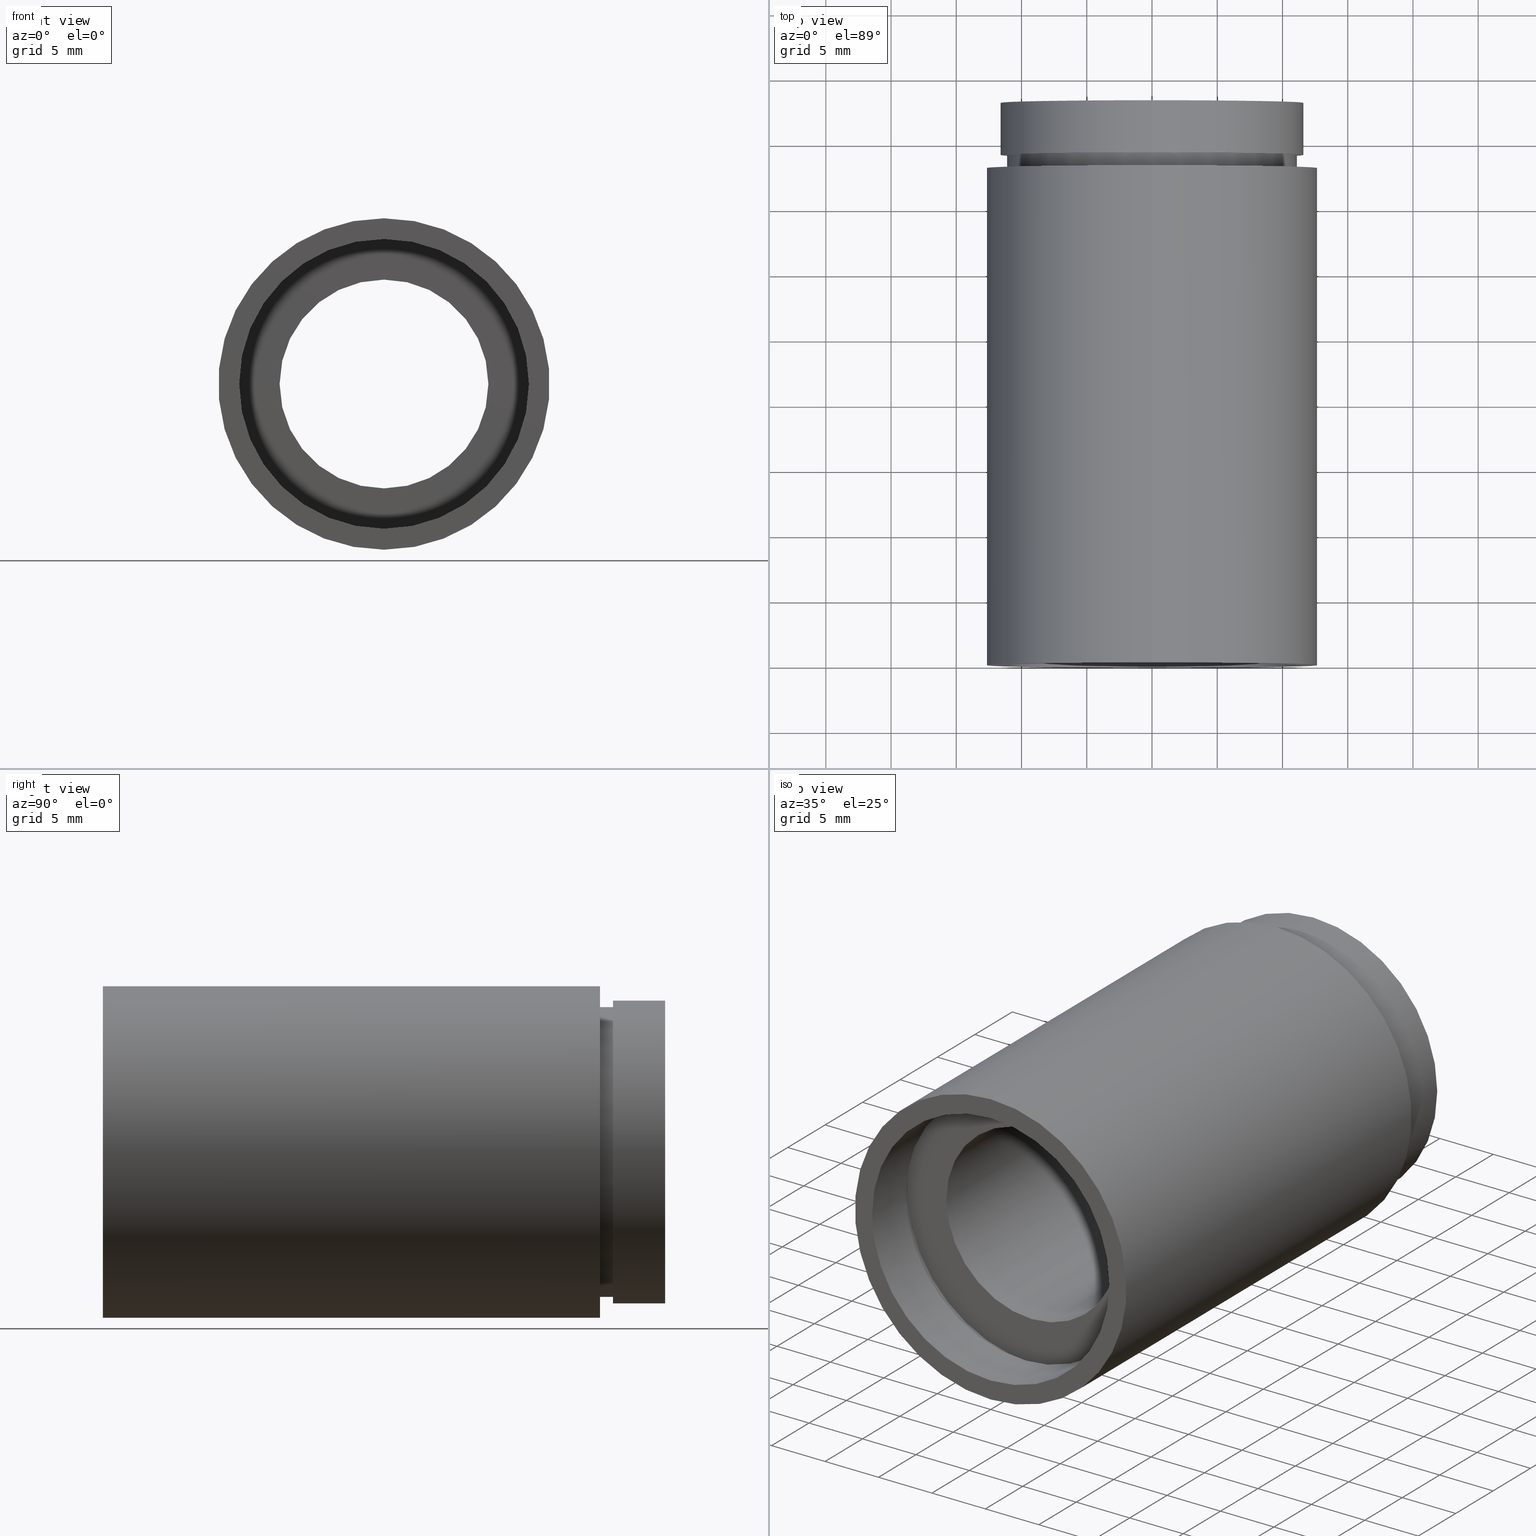
[diagram: canonical four-view strip — front | top / right | iso, engineering-drawing reading convention]
A machine part, canonical four-view strip (front | top / right | iso — engineering-drawing reading convention). The complete STEP part file that produces these views, byte-faithful:
ISO-10303-21;
HEADER;
FILE_DESCRIPTION (( 'STEP AP214' ),
    '1' );
FILE_NAME ('503068.STEP',
    '2019-09-09T07:54:37',
    ( '' ),
    ( '' ),
    'SwSTEP 2.0',
    'SolidWorks 2016',
    '' );
FILE_SCHEMA (( 'AUTOMOTIVE_DESIGN' ));
ENDSEC;

DATA;
#1 = PLANE ( 'NONE',  #345 ) ;
#2 = DIRECTION ( 'NONE',  ( -0.0000000000000000000, 1.000000000000000000, -0.0000000000000000000 ) ) ;
#3 = FACE_OUTER_BOUND ( 'NONE', #570, .T. ) ;
#4 = FILL_AREA_STYLE_COLOUR ( '', #110 ) ;
#5 = AXIS2_PLACEMENT_3D ( 'NONE', #102, #620, #55 ) ;
#6 = DIRECTION ( 'NONE',  ( 0.0000000000000000000, 0.0000000000000000000, 1.000000000000000000 ) ) ;
#7 = VECTOR ( 'NONE', #181, 1000.000000000000000 ) ;
#8 = DIRECTION ( 'NONE',  ( 0.0000000000000000000, 0.0000000000000000000, 1.000000000000000000 ) ) ;
#9 = DIRECTION ( 'NONE',  ( 0.0000000000000000000, 0.0000000000000000000, 1.000000000000000000 ) ) ;
#10 = PRESENTATION_STYLE_ASSIGNMENT (( #167 ) ) ;
#11 = ORIENTED_EDGE ( 'NONE', *, *, #369, .F. ) ;
#12 = ORIENTED_EDGE ( 'NONE', *, *, #388, .F. ) ;
#13 = CARTESIAN_POINT ( 'NONE',  ( 1.359357947053563700E-015, 161.3761669434274500, -11.10000000000001400 ) ) ;
#14 = PRESENTATION_LAYER_ASSIGNMENT (  '', '', ( #354 ) ) ;
#15 = CARTESIAN_POINT ( 'NONE',  ( 0.0000000000000000000, 38.09999999999999400, 11.10000000000001400 ) ) ;
#16 = MECHANICAL_DESIGN_GEOMETRIC_PRESENTATION_REPRESENTATION (  '', ( #420 ), #464 ) ;
#17 = CARTESIAN_POINT ( 'NONE',  ( 1.432836755002405500E-015, 5.499999999999976900, -11.70000000000001700 ) ) ;
#18 = FACE_OUTER_BOUND ( 'NONE', #138, .T. ) ;
#19 = DIRECTION ( 'NONE',  ( 0.0000000000000000000, 0.0000000000000000000, 1.000000000000000000 ) ) ;
#20 = ORIENTED_EDGE ( 'NONE', *, *, #251, .F. ) ;
#21 = EDGE_LOOP ( 'NONE', ( #472, #150, #605, #256 ) ) ;
#22 = EDGE_LOOP ( 'NONE', ( #486, #140 ) ) ;
#23 = EDGE_CURVE ( 'NONE', #299, #200, #249, .T. ) ;
#24 =( GEOMETRIC_REPRESENTATION_CONTEXT ( 3 ) GLOBAL_UNCERTAINTY_ASSIGNED_CONTEXT ( ( #166 ) ) GLOBAL_UNIT_ASSIGNED_CONTEXT ( ( #37, #142, #470 ) ) REPRESENTATION_CONTEXT ( 'NONE', 'WORKASPACE' ) );
#25 = DIRECTION ( 'NONE',  ( -0.0000000000000000000, 1.000000000000000000, 0.0000000000000000000 ) ) ;
#26 = EDGE_CURVE ( 'NONE', #224, #607, #367, .T. ) ;
#27 = CARTESIAN_POINT ( 'NONE',  ( 0.0000000000000000000, 38.09999999999999400, 0.0000000000000000000 ) ) ;
#28 = ADVANCED_FACE ( 'NONE', ( #338 ), #352, .F. ) ;
#29 = FACE_OUTER_BOUND ( 'NONE', #368, .T. ) ;
#30 = ORIENTED_EDGE ( 'NONE', *, *, #251, .T. ) ;
#31 = CARTESIAN_POINT ( 'NONE',  ( 0.0000000000000000000, 161.3761669434274500, 0.0000000000000000000 ) ) ;
#32 = ORIENTED_EDGE ( 'NONE', *, *, #104, .T. ) ;
#33 = DIRECTION ( 'NONE',  ( -0.0000000000000000000, 1.000000000000000000, -0.0000000000000000000 ) ) ;
#34 = AXIS2_PLACEMENT_3D ( 'NONE', #207, #351, #52 ) ;
#35 = PRESENTATION_STYLE_ASSIGNMENT (( #311 ) ) ;
#36 = VECTOR ( 'NONE', #552, 1000.000000000000000 ) ;
#37 =( LENGTH_UNIT ( ) NAMED_UNIT ( * ) SI_UNIT ( .MILLI., .METRE. ) );
#38 = DIRECTION ( 'NONE',  ( -0.0000000000000000000, 1.000000000000000000, -0.0000000000000000000 ) ) ;
#39 = CARTESIAN_POINT ( 'NONE',  ( 0.0000000000000000000, 0.0000000000000000000, 0.0000000000000000000 ) ) ;
#40 = DIRECTION ( 'NONE',  ( 0.0000000000000000000, 0.0000000000000000000, 1.000000000000000000 ) ) ;
#41 =( GEOMETRIC_REPRESENTATION_CONTEXT ( 3 ) GLOBAL_UNCERTAINTY_ASSIGNED_CONTEXT ( ( #271 ) ) GLOBAL_UNIT_ASSIGNED_CONTEXT ( ( #72, #319, #504 ) ) REPRESENTATION_CONTEXT ( 'NONE', 'WORKASPACE' ) );
#42 = FACE_BOUND ( 'NONE', #106, .T. ) ;
#43 = VERTEX_POINT ( 'NONE', #601 ) ;
#44 = CARTESIAN_POINT ( 'NONE',  ( 0.0000000000000000000, 39.09999999999999400, 0.0000000000000000000 ) ) ;
#45 = VERTEX_POINT ( 'NONE', #385 ) ;
#46 = CARTESIAN_POINT ( 'NONE',  ( 11.10000000000002300, -1.590039098016662300E-014, 0.0000000000000000000 ) ) ;
#47 =( GEOMETRIC_REPRESENTATION_CONTEXT ( 3 ) GLOBAL_UNCERTAINTY_ASSIGNED_CONTEXT ( ( #294 ) ) GLOBAL_UNIT_ASSIGNED_CONTEXT ( ( #215, #496, #405 ) ) REPRESENTATION_CONTEXT ( 'NONE', 'WORKASPACE' ) );
#48 = FILL_AREA_STYLE ('',( #480 ) ) ;
#49 = CARTESIAN_POINT ( 'NONE',  ( 0.0000000000000000000, 161.3761669434274500, 12.70000000000002800 ) ) ;
#50 = CIRCLE ( 'NONE', #497, 11.60000000000001400 ) ;
#51 = VERTEX_POINT ( 'NONE', #606 ) ;
#52 = DIRECTION ( 'NONE',  ( 0.0000000000000000000, 0.0000000000000000000, 1.000000000000000000 ) ) ;
#53 = EDGE_LOOP ( 'NONE', ( #305, #442, #474, #359 ) ) ;
#54 = CIRCLE ( 'NONE', #429, 11.70000000000001700 ) ;
#55 = DIRECTION ( 'NONE',  ( 0.0000000000000000000, 0.0000000000000000000, 1.000000000000000000 ) ) ;
#56 = PRESENTATION_LAYER_ASSIGNMENT (  '', '', ( #65 ) ) ;
#57 = DIRECTION ( 'NONE',  ( 0.0000000000000000000, 0.0000000000000000000, 1.000000000000000000 ) ) ;
#58 = DIRECTION ( 'NONE',  ( 1.000000000000000000, 0.0000000000000000000, 0.0000000000000000000 ) ) ;
#59 = CIRCLE ( 'NONE', #34, 11.70000000000001700 ) ;
#60 = CARTESIAN_POINT ( 'NONE',  ( 0.0000000000000000000, 161.3761669434274500, 0.0000000000000000000 ) ) ;
#61 = EDGE_CURVE ( 'NONE', #84, #149, #491, .T. ) ;
#62 = COLOUR_RGB ( '',1.000000000000000000, 1.000000000000000000, 1.000000000000000000 ) ;
#63 = DIRECTION ( 'NONE',  ( -0.0000000000000000000, 1.000000000000000000, -0.0000000000000000000 ) ) ;
#64 =( NAMED_UNIT ( * ) SI_UNIT ( $, .STERADIAN. ) SOLID_ANGLE_UNIT ( ) );
#65 = STYLED_ITEM ( 'NONE', ( #35 ), #279 ) ;
#66 = CARTESIAN_POINT ( 'NONE',  ( 0.0000000000000000000, 161.3761669434274500, 0.0000000000000000000 ) ) ;
#67 = DIRECTION ( 'NONE',  ( 0.0000000000000000000, 0.0000000000000000000, 1.000000000000000000 ) ) ;
#68 = VERTEX_POINT ( 'NONE', #202 ) ;
#69 =( GEOMETRIC_REPRESENTATION_CONTEXT ( 3 ) GLOBAL_UNCERTAINTY_ASSIGNED_CONTEXT ( ( #471 ) ) GLOBAL_UNIT_ASSIGNED_CONTEXT ( ( #217, #267, #172 ) ) REPRESENTATION_CONTEXT ( 'NONE', 'WORKASPACE' ) );
#70 = ORIENTED_EDGE ( 'NONE', *, *, #303, .T. ) ;
#71 = CYLINDRICAL_SURFACE ( 'NONE', #196, 12.70000000000002800 ) ;
#72 =( LENGTH_UNIT ( ) NAMED_UNIT ( * ) SI_UNIT ( .MILLI., .METRE. ) );
#73 = AXIS2_PLACEMENT_3D ( 'NONE', #581, #222, #162 ) ;
#74 = FILL_AREA_STYLE_COLOUR ( '', #382 ) ;
#75 = DIRECTION ( 'NONE',  ( 0.0000000000000000000, 0.0000000000000000000, 1.000000000000000000 ) ) ;
#76 = CIRCLE ( 'NONE', #560, 11.60000000000001400 ) ;
#77 = VERTEX_POINT ( 'NONE', #94 ) ;
#78 = VERTEX_POINT ( 'NONE', #241 ) ;
#79 = PRODUCT_DEFINITION ( 'δ֪', '', #389, #500 ) ;
#80 = CARTESIAN_POINT ( 'NONE',  ( 0.0000000000000000000, 161.3761669434274500, 0.0000000000000000000 ) ) ;
#81 = EDGE_CURVE ( 'NONE', #426, #45, #50, .T. ) ;
#82 = DIRECTION ( 'NONE',  ( 0.0000000000000000000, 0.0000000000000000000, 1.000000000000000000 ) ) ;
#83 = VERTEX_POINT ( 'NONE', #524 ) ;
#84 = VERTEX_POINT ( 'NONE', #301 ) ;
#85 = ORIENTED_EDGE ( 'NONE', *, *, #450, .F. ) ;
#86 = EDGE_CURVE ( 'NONE', #78, #229, #317, .T. ) ;
#87 = ADVANCED_FACE ( 'NONE', ( #425, #18 ), #469, .F. ) ;
#88 = CARTESIAN_POINT ( 'NONE',  ( 0.0000000000000000000, 38.09999999999999400, 0.0000000000000000000 ) ) ;
#89 = AXIS2_PLACEMENT_3D ( 'NONE', #60, #2, #8 ) ;
#90 = ORIENTED_EDGE ( 'NONE', *, *, #505, .F. ) ;
#91 = ORIENTED_EDGE ( 'NONE', *, *, #537, .F. ) ;
#92 = UNCERTAINTY_MEASURE_WITH_UNIT (LENGTH_MEASURE( 1.000000000000000100E-005 ), #561, 'distance_accuracy_value', 'NONE');
#93 = CIRCLE ( 'NONE', #270, 11.10000000000001400 ) ;
#94 = CARTESIAN_POINT ( 'NONE',  ( 0.0000000000000000000, -2.775557561562891400E-014, 12.70000000000001900 ) ) ;
#95 =( LENGTH_UNIT ( ) NAMED_UNIT ( * ) SI_UNIT ( .MILLI., .METRE. ) );
#96 = ORIENTED_EDGE ( 'NONE', *, *, #104, .F. ) ;
#97 = CARTESIAN_POINT ( 'NONE',  ( 0.0000000000000000000, 161.3761669434274500, 8.000000000000019500 ) ) ;
#98 = ORIENTED_EDGE ( 'NONE', *, *, #423, .T. ) ;
#99 = DIRECTION ( 'NONE',  ( 0.0000000000000000000, 0.0000000000000000000, 1.000000000000000000 ) ) ;
#100 = STYLED_ITEM ( 'NONE', ( #350 ), #461 ) ;
#101 = CYLINDRICAL_SURFACE ( 'NONE', #89, 8.000000000000019500 ) ;
#102 = CARTESIAN_POINT ( 'NONE',  ( 0.0000000000000000000, 161.3761669434274500, 0.0000000000000000000 ) ) ;
#103 = CARTESIAN_POINT ( 'NONE',  ( 0.0000000000000000000, 38.09999999999999400, 0.0000000000000000000 ) ) ;
#104 = EDGE_CURVE ( 'NONE', #607, #224, #105, .T. ) ;
#105 = CIRCLE ( 'NONE', #551, 11.60000000000001400 ) ;
#106 = EDGE_LOOP ( 'NONE', ( #346, #510 ) ) ;
#107 = APPLICATION_PROTOCOL_DEFINITION ( 'draft international standard', 'automotive_design', 1998, #261 ) ;
#108 = CIRCLE ( 'NONE', #484, 11.10000000000001400 ) ;
#109 = UNCERTAINTY_MEASURE_WITH_UNIT (LENGTH_MEASURE( 1.000000000000000100E-005 ), #522, 'distance_accuracy_value', 'NONE');
#110 = COLOUR_RGB ( '',1.000000000000000000, 1.000000000000000000, 1.000000000000000000 ) ;
#111 = DIRECTION ( 'NONE',  ( 0.0000000000000000000, 0.0000000000000000000, 1.000000000000000000 ) ) ;
#112 = EDGE_CURVE ( 'NONE', #84, #68, #165, .T. ) ;
#113 = FILL_AREA_STYLE ('',( #567 ) ) ;
#114 = ORIENTED_EDGE ( 'NONE', *, *, #378, .T. ) ;
#115 = EDGE_CURVE ( 'NONE', #45, #426, #76, .T. ) ;
#116 = CYLINDRICAL_SURFACE ( 'NONE', #618, 11.70000000000001700 ) ;
#117 =( LENGTH_UNIT ( ) NAMED_UNIT ( * ) SI_UNIT ( .MILLI., .METRE. ) );
#118 = VERTEX_POINT ( 'NONE', #296 ) ;
#119 = AXIS2_PLACEMENT_3D ( 'NONE', #545, #269, #75 ) ;
#120 = CARTESIAN_POINT ( 'NONE',  ( 1.420590287010931300E-015, 39.09999999999999400, -11.60000000000001400 ) ) ;
#121 = AXIS2_PLACEMENT_3D ( 'NONE', #66, #268, #57 ) ;
#122 = CARTESIAN_POINT ( 'NONE',  ( 0.0000000000000000000, 5.499999999999976900, 0.0000000000000000000 ) ) ;
#123 = CARTESIAN_POINT ( 'NONE',  ( 0.0000000000000000000, 161.3761669434274500, 11.70000000000001700 ) ) ;
#124 = FACE_BOUND ( 'NONE', #281, .T. ) ;
#125 = CARTESIAN_POINT ( 'NONE',  ( 0.0000000000000000000, 43.09999999999998700, 0.0000000000000000000 ) ) ;
#126 = ORIENTED_EDGE ( 'NONE', *, *, #537, .T. ) ;
#127 = ADVANCED_FACE ( 'NONE', ( #29, #42 ), #143, .F. ) ;
#128 = ORIENTED_EDGE ( 'NONE', *, *, #455, .F. ) ;
#129 = PRESENTATION_LAYER_ASSIGNMENT (  '', '', ( #183 ) ) ;
#130 = VERTEX_POINT ( 'NONE', #610 ) ;
#131 = CARTESIAN_POINT ( 'NONE',  ( 11.70000000000001700, 5.499999999999984000, 0.0000000000000000000 ) ) ;
#132 = UNCERTAINTY_MEASURE_WITH_UNIT (LENGTH_MEASURE( 1.000000000000000100E-005 ), #117, 'distance_accuracy_value', 'NONE');
#133 = ADVANCED_FACE ( 'NONE', ( #3 ), #116, .F. ) ;
#134 = AXIS2_PLACEMENT_3D ( 'NONE', #276, #230, #9 ) ;
#135 = DIRECTION ( 'NONE',  ( -0.0000000000000000000, 1.000000000000000000, -0.0000000000000000000 ) ) ;
#136 = ADVANCED_FACE ( 'NONE', ( #419 ), #506, .T. ) ;
#137 = DIRECTION ( 'NONE',  ( 0.0000000000000000000, 0.0000000000000000000, 1.000000000000000000 ) ) ;
#138 = EDGE_LOOP ( 'NONE', ( #348, #223 ) ) ;
#139 = CARTESIAN_POINT ( 'NONE',  ( 0.0000000000000000000, 39.09999999999999400, 0.0000000000000000000 ) ) ;
#140 = ORIENTED_EDGE ( 'NONE', *, *, #418, .T. ) ;
#141 = EDGE_CURVE ( 'NONE', #45, #224, #604, .T. ) ;
#142 =( NAMED_UNIT ( * ) PLANE_ANGLE_UNIT ( ) SI_UNIT ( $, .RADIAN. ) );
#143 = PLANE ( 'NONE',  #177 ) ;
#144 = SURFACE_STYLE_FILL_AREA ( #589 ) ;
#145 = DIRECTION ( 'NONE',  ( -0.0000000000000000000, 1.000000000000000000, -0.0000000000000000000 ) ) ;
#146 = PRESENTATION_LAYER_ASSIGNMENT (  '', '', ( #100 ) ) ;
#147 = CARTESIAN_POINT ( 'NONE',  ( 0.0000000000000000000, -2.775557561562891400E-014, 0.0000000000000000000 ) ) ;
#148 = CYLINDRICAL_SURFACE ( 'NONE', #210, 11.60000000000001400 ) ;
#149 = VERTEX_POINT ( 'NONE', #575 ) ;
#150 = ORIENTED_EDGE ( 'NONE', *, *, #23, .T. ) ;
#151 = DIRECTION ( 'NONE',  ( 0.0000000000000000000, 0.0000000000000000000, 1.000000000000000000 ) ) ;
#152 = ORIENTED_EDGE ( 'NONE', *, *, #201, .T. ) ;
#153 = AXIS2_PLACEMENT_3D ( 'NONE', #578, #250, #151 ) ;
#154 = LINE ( 'NONE', #123, #562 ) ;
#155 = CARTESIAN_POINT ( 'NONE',  ( 0.0000000000000000000, 43.09999999999998700, 11.60000000000001400 ) ) ;
#156 = VECTOR ( 'NONE', #441, 1000.000000000000000 ) ;
#157 = ORIENTED_EDGE ( 'NONE', *, *, #309, .F. ) ;
#158 = ORIENTED_EDGE ( 'NONE', *, *, #388, .T. ) ;
#159 = SURFACE_SIDE_STYLE ('',( #527 ) ) ;
#160 = AXIS2_PLACEMENT_3D ( 'NONE', #80, #598, #465 ) ;
#161 = PRODUCT ( '503068', '503068', '', ( #357 ) ) ;
#162 = DIRECTION ( 'NONE',  ( 0.0000000000000000000, 0.0000000000000000000, 1.000000000000000000 ) ) ;
#163 = EDGE_CURVE ( 'NONE', #51, #416, #502, .T. ) ;
#164 = APPLICATION_CONTEXT ( 'automotive_design' ) ;
#165 = LINE ( 'NONE', #431, #568 ) ;
#166 = UNCERTAINTY_MEASURE_WITH_UNIT (LENGTH_MEASURE( 1.000000000000000100E-005 ), #37, 'distance_accuracy_value', 'NONE');
#167 = SURFACE_STYLE_USAGE ( .BOTH. , #624 ) ;
#168 = LINE ( 'NONE', #331, #398 ) ;
#169 = CARTESIAN_POINT ( 'NONE',  ( 12.70000000000003700, 38.09999999999998700, 0.0000000000000000000 ) ) ;
#170 = CIRCLE ( 'NONE', #529, 8.000000000000019500 ) ;
#171 = AXIS2_PLACEMENT_3D ( 'NONE', #176, #179, #67 ) ;
#172 =( NAMED_UNIT ( * ) SI_UNIT ( $, .STERADIAN. ) SOLID_ANGLE_UNIT ( ) );
#173 = CARTESIAN_POINT ( 'NONE',  ( 1.359357947053564500E-015, 161.3761669434274500, -11.10000000000002100 ) ) ;
#174 = AXIS2_PLACEMENT_3D ( 'NONE', #122, #548, #363 ) ;
#175 = ORIENTED_EDGE ( 'NONE', *, *, #234, .F. ) ;
#176 = CARTESIAN_POINT ( 'NONE',  ( 0.0000000000000000000, -2.775557561562891400E-014, 0.0000000000000000000 ) ) ;
#177 = AXIS2_PLACEMENT_3D ( 'NONE', #46, #399, #573 ) ;
#178 = CARTESIAN_POINT ( 'NONE',  ( 0.0000000000000000000, 43.09999999999998700, 8.000000000000019500 ) ) ;
#179 = DIRECTION ( 'NONE',  ( -0.0000000000000000000, 1.000000000000000000, -0.0000000000000000000 ) ) ;
#180 = COLOUR_RGB ( '',1.000000000000000000, 1.000000000000000000, 1.000000000000000000 ) ;
#181 = DIRECTION ( 'NONE',  ( -0.0000000000000000000, 1.000000000000000000, -0.0000000000000000000 ) ) ;
#182 = EDGE_LOOP ( 'NONE', ( #221, #387 ) ) ;
#183 = STYLED_ITEM ( 'NONE', ( #616 ), #384 ) ;
#184 = ORIENTED_EDGE ( 'NONE', *, *, #406, .T. ) ;
#185 = CARTESIAN_POINT ( 'NONE',  ( 11.10000000000001400, 39.09999999999999400, 0.0000000000000000000 ) ) ;
#186 = LINE ( 'NONE', #591, #458 ) ;
#187 = ADVANCED_FACE ( 'NONE', ( #485 ), #148, .T. ) ;
#188 = EDGE_CURVE ( 'NONE', #130, #83, #415, .T. ) ;
#189 = DIRECTION ( 'NONE',  ( 0.0000000000000000000, 0.0000000000000000000, 1.000000000000000000 ) ) ;
#190 = ORIENTED_EDGE ( 'NONE', *, *, #525, .T. ) ;
#191 = DIRECTION ( 'NONE',  ( -0.0000000000000000000, 1.000000000000000000, -0.0000000000000000000 ) ) ;
#192 = CYLINDRICAL_SURFACE ( 'NONE', #134, 11.10000000000002100 ) ;
#193 = CIRCLE ( 'NONE', #174, 11.70000000000001700 ) ;
#194 = DIRECTION ( 'NONE',  ( 0.0000000000000000000, -0.0000000000000000000, -1.000000000000000000 ) ) ;
#195 = UNCERTAINTY_MEASURE_WITH_UNIT (LENGTH_MEASURE( 1.000000000000000100E-005 ), #95, 'distance_accuracy_value', 'NONE');
#196 = AXIS2_PLACEMENT_3D ( 'NONE', #424, #240, #468 ) ;
#197 = DIRECTION ( 'NONE',  ( -0.0000000000000000000, 1.000000000000000000, -0.0000000000000000000 ) ) ;
#198 = DIRECTION ( 'NONE',  ( -0.0000000000000000000, 1.000000000000000000, -0.0000000000000000000 ) ) ;
#199 = SURFACE_STYLE_FILL_AREA ( #586 ) ;
#200 = VERTEX_POINT ( 'NONE', #209 ) ;
#201 = EDGE_CURVE ( 'NONE', #77, #130, #452, .T. ) ;
#202 = CARTESIAN_POINT ( 'NONE',  ( 0.0000000000000000000, 4.499999999999976000, 11.10000000000001900 ) ) ;
#203 = FACE_OUTER_BOUND ( 'NONE', #53, .T. ) ;
#204 = DIRECTION ( 'NONE',  ( -0.0000000000000000000, 1.000000000000000000, -0.0000000000000000000 ) ) ;
#205 = MECHANICAL_DESIGN_GEOMETRIC_PRESENTATION_REPRESENTATION (  '', ( #100 ), #208 ) ;
#206 = FACE_OUTER_BOUND ( 'NONE', #536, .T. ) ;
#207 = CARTESIAN_POINT ( 'NONE',  ( 0.0000000000000000000, 4.499999999999976000, 0.0000000000000000000 ) ) ;
#208 =( GEOMETRIC_REPRESENTATION_CONTEXT ( 3 ) GLOBAL_UNCERTAINTY_ASSIGNED_CONTEXT ( ( #132 ) ) GLOBAL_UNIT_ASSIGNED_CONTEXT ( ( #117, #321, #324 ) ) REPRESENTATION_CONTEXT ( 'NONE', 'WORKASPACE' ) );
#209 = CARTESIAN_POINT ( 'NONE',  ( 9.797174393178849300E-016, 43.09999999999998700, -8.000000000000019500 ) ) ;
#210 = AXIS2_PLACEMENT_3D ( 'NONE', #530, #255, #347 ) ;
#211 = LINE ( 'NONE', #483, #323 ) ;
#212 = DIRECTION ( 'NONE',  ( 0.0000000000000000000, -1.000000000000000000, 0.0000000000000000000 ) ) ;
#213 = EDGE_LOOP ( 'NONE', ( #456, #98, #362, #91 ) ) ;
#214 = ORIENTED_EDGE ( 'NONE', *, *, #284, .T. ) ;
#215 =( LENGTH_UNIT ( ) NAMED_UNIT ( * ) SI_UNIT ( .MILLI., .METRE. ) );
#216 = MECHANICAL_DESIGN_GEOMETRIC_PRESENTATION_REPRESENTATION (  '', ( #65 ), #69 ) ;
#217 =( LENGTH_UNIT ( ) NAMED_UNIT ( * ) SI_UNIT ( .MILLI., .METRE. ) );
#218 = CARTESIAN_POINT ( 'NONE',  ( 0.0000000000000000000, 161.3761669434274500, 0.0000000000000000000 ) ) ;
#219 = AXIS2_PLACEMENT_3D ( 'NONE', #585, #316, #6 ) ;
#220 = SURFACE_SIDE_STYLE ('',( #266 ) ) ;
#221 = ORIENTED_EDGE ( 'NONE', *, *, #188, .T. ) ;
#222 = DIRECTION ( 'NONE',  ( -0.0000000000000000000, 1.000000000000000000, -0.0000000000000000000 ) ) ;
#223 = ORIENTED_EDGE ( 'NONE', *, *, #234, .T. ) ;
#224 = VERTEX_POINT ( 'NONE', #155 ) ;
#225 = SURFACE_STYLE_USAGE ( .BOTH. , #590 ) ;
#226 = CARTESIAN_POINT ( 'NONE',  ( 0.0000000000000000000, 43.09999999999998700, 0.0000000000000000000 ) ) ;
#227 = AXIS2_PLACEMENT_3D ( 'NONE', #185, #379, #19 ) ;
#228 = EDGE_LOOP ( 'NONE', ( #396, #32 ) ) ;
#229 = VERTEX_POINT ( 'NONE', #617 ) ;
#230 = DIRECTION ( 'NONE',  ( -0.0000000000000000000, 1.000000000000000000, -0.0000000000000000000 ) ) ;
#231 = PRESENTATION_LAYER_ASSIGNMENT (  '', '', ( #420 ) ) ;
#232 = DIRECTION ( 'NONE',  ( -0.0000000000000000000, 1.000000000000000000, -0.0000000000000000000 ) ) ;
#233 = DIRECTION ( 'NONE',  ( -0.0000000000000000000, 1.000000000000000000, -0.0000000000000000000 ) ) ;
#234 = EDGE_CURVE ( 'NONE', #229, #78, #59, .T. ) ;
#235 = ORIENTED_EDGE ( 'NONE', *, *, #501, .T. ) ;
#236 = ORIENTED_EDGE ( 'NONE', *, *, #61, .F. ) ;
#237 = SURFACE_STYLE_USAGE ( .BOTH. , #514 ) ;
#238 = VECTOR ( 'NONE', #454, 1000.000000000000000 ) ;
#239 = MECHANICAL_DESIGN_GEOMETRIC_PRESENTATION_REPRESENTATION (  '', ( #183 ), #41 ) ;
#240 = DIRECTION ( 'NONE',  ( -0.0000000000000000000, 1.000000000000000000, -0.0000000000000000000 ) ) ;
#241 = CARTESIAN_POINT ( 'NONE',  ( 0.0000000000000000000, 4.499999999999976000, 11.70000000000001700 ) ) ;
#242 = AXIS2_PLACEMENT_3D ( 'NONE', #544, #63, #263 ) ;
#243 = ORIENTED_EDGE ( 'NONE', *, *, #455, .T. ) ;
#244 = CARTESIAN_POINT ( 'NONE',  ( 1.420590287010931300E-015, 43.09999999999998700, -11.60000000000001400 ) ) ;
#245 = ORIENTED_EDGE ( 'NONE', *, *, #593, .F. ) ;
#246 =( NAMED_UNIT ( * ) PLANE_ANGLE_UNIT ( ) SI_UNIT ( $, .RADIAN. ) );
#247 = DIRECTION ( 'NONE',  ( 0.0000000000000000000, 0.0000000000000000000, 1.000000000000000000 ) ) ;
#248 = CYLINDRICAL_SURFACE ( 'NONE', #392, 11.10000000000002100 ) ;
#249 = LINE ( 'NONE', #516, #325 ) ;
#250 = DIRECTION ( 'NONE',  ( -0.0000000000000000000, 1.000000000000000000, -0.0000000000000000000 ) ) ;
#251 = EDGE_CURVE ( 'NONE', #426, #607, #211, .T. ) ;
#252 = CLOSED_SHELL ( 'NONE', ( #461, #133, #381, #592, #330, #599, #127, #136, #374, #518, #559, #187, #372, #28, #555, #292, #87, #335 ) ) ;
#253 = PRESENTATION_STYLE_ASSIGNMENT (( #237 ) ) ;
#254 = SURFACE_STYLE_FILL_AREA ( #499 ) ;
#255 = DIRECTION ( 'NONE',  ( -0.0000000000000000000, 1.000000000000000000, -0.0000000000000000000 ) ) ;
#256 = ORIENTED_EDGE ( 'NONE', *, *, #163, .F. ) ;
#257 =( NAMED_UNIT ( * ) SI_UNIT ( $, .STERADIAN. ) SOLID_ANGLE_UNIT ( ) );
#258 = SURFACE_SIDE_STYLE ('',( #393 ) ) ;
#259 = CARTESIAN_POINT ( 'NONE',  ( 11.60000000000001400, 43.09999999999998700, 0.0000000000000000000 ) ) ;
#260 = AXIS2_PLACEMENT_3D ( 'NONE', #147, #191, #293 ) ;
#261 = APPLICATION_CONTEXT ( 'automotive_design' ) ;
#262 = FACE_BOUND ( 'NONE', #376, .T. ) ;
#263 = DIRECTION ( 'NONE',  ( 0.0000000000000000000, 0.0000000000000000000, 1.000000000000000000 ) ) ;
#264 = ORIENTED_EDGE ( 'NONE', *, *, #141, .F. ) ;
#265 = DIRECTION ( 'NONE',  ( -0.0000000000000000000, 1.000000000000000000, -0.0000000000000000000 ) ) ;
#266 = SURFACE_STYLE_FILL_AREA ( #113 ) ;
#267 =( NAMED_UNIT ( * ) PLANE_ANGLE_UNIT ( ) SI_UNIT ( $, .RADIAN. ) );
#268 = DIRECTION ( 'NONE',  ( -0.0000000000000000000, 1.000000000000000000, -0.0000000000000000000 ) ) ;
#269 = DIRECTION ( 'NONE',  ( -0.0000000000000000000, 1.000000000000000000, -0.0000000000000000000 ) ) ;
#270 = AXIS2_PLACEMENT_3D ( 'NONE', #88, #460, #137 ) ;
#271 = UNCERTAINTY_MEASURE_WITH_UNIT (LENGTH_MEASURE( 1.000000000000000100E-005 ), #72, 'distance_accuracy_value', 'NONE');
#272 = CIRCLE ( 'NONE', #73, 12.70000000000003700 ) ;
#273 = CARTESIAN_POINT ( 'NONE',  ( 1.432836755002405500E-015, 161.3761669434274500, -11.70000000000001700 ) ) ;
#274 = VERTEX_POINT ( 'NONE', #308 ) ;
#275 = EDGE_LOOP ( 'NONE', ( #580, #547 ) ) ;
#276 = CARTESIAN_POINT ( 'NONE',  ( 0.0000000000000000000, 161.3761669434274500, 0.0000000000000000000 ) ) ;
#277 = DIRECTION ( 'NONE',  ( 0.0000000000000000000, 0.0000000000000000000, 1.000000000000000000 ) ) ;
#278 = DIRECTION ( 'NONE',  ( 0.0000000000000000000, 0.0000000000000000000, 1.000000000000000000 ) ) ;
#279 = ADVANCED_BREP_SHAPE_REPRESENTATION ( '503068', ( #384, #322 ), #24 ) ;
#280 =( GEOMETRIC_REPRESENTATION_CONTEXT ( 3 ) GLOBAL_UNCERTAINTY_ASSIGNED_CONTEXT ( ( #603 ) ) GLOBAL_UNIT_ASSIGNED_CONTEXT ( ( #540, #358, #64 ) ) REPRESENTATION_CONTEXT ( 'NONE', 'WORKASPACE' ) );
#281 = EDGE_LOOP ( 'NONE', ( #403, #340 ) ) ;
#282 = VERTEX_POINT ( 'NONE', #304 ) ;
#283 = EDGE_LOOP ( 'NONE', ( #12, #428 ) ) ;
#284 = EDGE_CURVE ( 'NONE', #377, #274, #534, .T. ) ;
#285 = LINE ( 'NONE', #273, #36 ) ;
#286 = DIRECTION ( 'NONE',  ( -0.0000000000000000000, 1.000000000000000000, -0.0000000000000000000 ) ) ;
#287 =( NAMED_UNIT ( * ) SI_UNIT ( $, .STERADIAN. ) SOLID_ANGLE_UNIT ( ) );
#288 = DIRECTION ( 'NONE',  ( 0.0000000000000000000, 0.0000000000000000000, 1.000000000000000000 ) ) ;
#289 = CIRCLE ( 'NONE', #608, 11.10000000000001400 ) ;
#290 = FILL_AREA_STYLE_COLOUR ( '', #62 ) ;
#291 = ORIENTED_EDGE ( 'NONE', *, *, #588, .F. ) ;
#292 = ADVANCED_FACE ( 'NONE', ( #206 ), #401, .F. ) ;
#293 = DIRECTION ( 'NONE',  ( 0.0000000000000000000, 0.0000000000000000000, 1.000000000000000000 ) ) ;
#294 = UNCERTAINTY_MEASURE_WITH_UNIT (LENGTH_MEASURE( 1.000000000000000100E-005 ), #215, 'distance_accuracy_value', 'NONE');
#295 = DIRECTION ( 'NONE',  ( 0.0000000000000000000, -1.000000000000000000, 0.0000000000000000000 ) ) ;
#296 = CARTESIAN_POINT ( 'NONE',  ( 1.555301434917141200E-015, -2.775557561562891400E-014, -12.70000000000001900 ) ) ;
#297 = VECTOR ( 'NONE', #343, 1000.000000000000000 ) ;
#298 = AXIS2_PLACEMENT_3D ( 'NONE', #383, #609, #40 ) ;
#299 = VERTEX_POINT ( 'NONE', #360 ) ;
#300 = ORIENTED_EDGE ( 'NONE', *, *, #112, .F. ) ;
#301 = CARTESIAN_POINT ( 'NONE',  ( 0.0000000000000000000, -2.775557561562891400E-014, 11.10000000000002300 ) ) ;
#302 = DIRECTION ( 'NONE',  ( -0.0000000000000000000, 1.000000000000000000, -0.0000000000000000000 ) ) ;
#303 = EDGE_CURVE ( 'NONE', #274, #377, #289, .T. ) ;
#304 = CARTESIAN_POINT ( 'NONE',  ( 1.359357947053563700E-015, 38.09999999999999400, -11.10000000000001400 ) ) ;
#305 = ORIENTED_EDGE ( 'NONE', *, *, #369, .T. ) ;
#306 = MECHANICAL_DESIGN_GEOMETRIC_PRESENTATION_REPRESENTATION (  '', ( #354 ), #280 ) ;
#307 = EDGE_LOOP ( 'NONE', ( #595, #236, #519, #243 ) ) ;
#308 = CARTESIAN_POINT ( 'NONE',  ( 0.0000000000000000000, 39.09999999999999400, 11.10000000000001400 ) ) ;
#309 = EDGE_CURVE ( 'NONE', #83, #130, #272, .T. ) ;
#310 = CARTESIAN_POINT ( 'NONE',  ( 0.0000000000000000000, 39.09999999999999400, 0.0000000000000000000 ) ) ;
#311 = SURFACE_STYLE_USAGE ( .BOTH. , #220 ) ;
#312 = ORIENTED_EDGE ( 'NONE', *, *, #163, .T. ) ;
#313 = PRESENTATION_LAYER_ASSIGNMENT (  '', '', ( #520 ) ) ;
#314 = FACE_OUTER_BOUND ( 'NONE', #487, .T. ) ;
#315 = LINE ( 'NONE', #173, #238 ) ;
#316 = DIRECTION ( 'NONE',  ( -0.0000000000000000000, 1.000000000000000000, -0.0000000000000000000 ) ) ;
#317 = CIRCLE ( 'NONE', #298, 11.70000000000001700 ) ;
#318 = EDGE_LOOP ( 'NONE', ( #332, #291, #312, #353 ) ) ;
#319 =( NAMED_UNIT ( * ) PLANE_ANGLE_UNIT ( ) SI_UNIT ( $, .RADIAN. ) );
#320 = COLOUR_RGB ( '',1.000000000000000000, 1.000000000000000000, 1.000000000000000000 ) ;
#321 =( NAMED_UNIT ( * ) PLANE_ANGLE_UNIT ( ) SI_UNIT ( $, .RADIAN. ) );
#322 = AXIS2_PLACEMENT_3D ( 'NONE', #39, #446, #58 ) ;
#323 = VECTOR ( 'NONE', #204, 1000.000000000000000 ) ;
#324 =( NAMED_UNIT ( * ) SI_UNIT ( $, .STERADIAN. ) SOLID_ANGLE_UNIT ( ) );
#325 = VECTOR ( 'NONE', #198, 1000.000000000000000 ) ;
#326 = AXIS2_PLACEMENT_3D ( 'NONE', #103, #302, #574 ) ;
#327 = DIRECTION ( 'NONE',  ( 0.0000000000000000000, 0.0000000000000000000, 1.000000000000000000 ) ) ;
#328 = DIRECTION ( 'NONE',  ( -0.0000000000000000000, 1.000000000000000000, -0.0000000000000000000 ) ) ;
#329 = DIRECTION ( 'NONE',  ( -0.0000000000000000000, 1.000000000000000000, -0.0000000000000000000 ) ) ;
#330 = ADVANCED_FACE ( 'NONE', ( #517 ), #619, .T. ) ;
#331 = CARTESIAN_POINT ( 'NONE',  ( 0.0000000000000000000, 161.3761669434274500, 11.10000000000001400 ) ) ;
#332 = ORIENTED_EDGE ( 'NONE', *, *, #23, .F. ) ;
#333 = FACE_OUTER_BOUND ( 'NONE', #275, .T. ) ;
#334 = AXIS2_PLACEMENT_3D ( 'NONE', #226, #232, #278 ) ;
#335 = ADVANCED_FACE ( 'NONE', ( #386 ), #248, .F. ) ;
#336 = DIRECTION ( 'NONE',  ( 0.0000000000000000000, 0.0000000000000000000, 1.000000000000000000 ) ) ;
#337 = STYLED_ITEM ( 'NONE', ( #10 ), #335 ) ;
#338 = FACE_OUTER_BOUND ( 'NONE', #318, .T. ) ;
#339 = FILL_AREA_STYLE ('',( #290 ) ) ;
#340 = ORIENTED_EDGE ( 'NONE', *, *, #501, .F. ) ;
#341 =( NAMED_UNIT ( * ) SI_UNIT ( $, .STERADIAN. ) SOLID_ANGLE_UNIT ( ) );
#342 = FACE_OUTER_BOUND ( 'NONE', #283, .T. ) ;
#343 = DIRECTION ( 'NONE',  ( -0.0000000000000000000, 1.000000000000000000, -0.0000000000000000000 ) ) ;
#344 = FACE_OUTER_BOUND ( 'NONE', #228, .T. ) ;
#345 = AXIS2_PLACEMENT_3D ( 'NONE', #259, #451, #444 ) ;
#346 = ORIENTED_EDGE ( 'NONE', *, *, #61, .T. ) ;
#347 = DIRECTION ( 'NONE',  ( 0.0000000000000000000, 0.0000000000000000000, 1.000000000000000000 ) ) ;
#348 = ORIENTED_EDGE ( 'NONE', *, *, #86, .T. ) ;
#349 = FACE_BOUND ( 'NONE', #22, .T. ) ;
#350 = PRESENTATION_STYLE_ASSIGNMENT (( #225 ) ) ;
#351 = DIRECTION ( 'NONE',  ( -0.0000000000000000000, 1.000000000000000000, -0.0000000000000000000 ) ) ;
#352 = CYLINDRICAL_SURFACE ( 'NONE', #621, 8.000000000000019500 ) ;
#353 = ORIENTED_EDGE ( 'NONE', *, *, #507, .T. ) ;
#354 = STYLED_ITEM ( 'NONE', ( #584 ), #381 ) ;
#355 = DIRECTION ( 'NONE',  ( -0.0000000000000000000, 1.000000000000000000, -0.0000000000000000000 ) ) ;
#356 = PRESENTATION_LAYER_ASSIGNMENT (  '', '', ( #337 ) ) ;
#357 = PRODUCT_CONTEXT ( 'NONE', #261, 'mechanical' ) ;
#358 =( NAMED_UNIT ( * ) PLANE_ANGLE_UNIT ( ) SI_UNIT ( $, .RADIAN. ) );
#359 = ORIENTED_EDGE ( 'NONE', *, *, #201, .F. ) ;
#360 = CARTESIAN_POINT ( 'NONE',  ( 9.797174393178849300E-016, 5.499999999999976900, -8.000000000000019500 ) ) ;
#361 = ORIENTED_EDGE ( 'NONE', *, *, #115, .T. ) ;
#362 = ORIENTED_EDGE ( 'NONE', *, *, #303, .F. ) ;
#363 = DIRECTION ( 'NONE',  ( 0.0000000000000000000, 0.0000000000000000000, 1.000000000000000000 ) ) ;
#364 = FILL_AREA_STYLE_COLOUR ( '', #404 ) ;
#365 = AXIS2_PLACEMENT_3D ( 'NONE', #169, #212, #539 ) ;
#366 = CARTESIAN_POINT ( 'NONE',  ( 0.0000000000000000000, 5.499999999999976900, 0.0000000000000000000 ) ) ;
#367 = CIRCLE ( 'NONE', #440, 11.60000000000001400 ) ;
#368 = EDGE_LOOP ( 'NONE', ( #11, #245 ) ) ;
#369 = EDGE_CURVE ( 'NONE', #77, #118, #478, .T. ) ;
#370 = CIRCLE ( 'NONE', #171, 11.10000000000002300 ) ;
#371 = SURFACE_STYLE_USAGE ( .BOTH. , #417 ) ;
#372 = ADVANCED_FACE ( 'NONE', ( #262, #344 ), #1, .F. ) ;
#373 = AXIS2_PLACEMENT_3D ( 'NONE', #407, #355, #408 ) ;
#374 = ADVANCED_FACE ( 'NONE', ( #124, #594 ), #582, .F. ) ;
#375 = FILL_AREA_STYLE ('',( #600 ) ) ;
#376 = EDGE_LOOP ( 'NONE', ( #494, #85 ) ) ;
#377 = VERTEX_POINT ( 'NONE', #579 ) ;
#378 = EDGE_CURVE ( 'NONE', #623, #68, #462, .T. ) ;
#379 = DIRECTION ( 'NONE',  ( -0.0000000000000000000, 1.000000000000000000, 0.0000000000000000000 ) ) ;
#380 = FACE_BOUND ( 'NONE', #463, .T. ) ;
#381 = ADVANCED_FACE ( 'NONE', ( #611 ), #101, .F. ) ;
#382 = COLOUR_RGB ( '',1.000000000000000000, 1.000000000000000000, 1.000000000000000000 ) ;
#383 = CARTESIAN_POINT ( 'NONE',  ( 0.0000000000000000000, 4.499999999999976000, 0.0000000000000000000 ) ) ;
#384 = MANIFOLD_SOLID_BREP ( '��ת1', #252 ) ;
#385 = CARTESIAN_POINT ( 'NONE',  ( 0.0000000000000000000, 39.09999999999999400, 11.60000000000001400 ) ) ;
#386 = FACE_OUTER_BOUND ( 'NONE', #307, .T. ) ;
#387 = ORIENTED_EDGE ( 'NONE', *, *, #309, .T. ) ;
#388 = EDGE_CURVE ( 'NONE', #43, #481, #193, .T. ) ;
#389 = PRODUCT_DEFINITION_FORMATION_WITH_SPECIFIED_SOURCE ( '�κ�', '', #161, .NOT_KNOWN. ) ;
#390 = CARTESIAN_POINT ( 'NONE',  ( 1.359357947053564500E-015, 4.499999999999976000, -11.10000000000001900 ) ) ;
#391 = DIRECTION ( 'NONE',  ( -0.0000000000000000000, 1.000000000000000000, -0.0000000000000000000 ) ) ;
#392 = AXIS2_PLACEMENT_3D ( 'NONE', #218, #265, #492 ) ;
#393 = SURFACE_STYLE_FILL_AREA ( #447 ) ;
#394 = ORIENTED_EDGE ( 'NONE', *, *, #423, .F. ) ;
#395 = CARTESIAN_POINT ( 'NONE',  ( 0.0000000000000000000, 161.3761669434274500, 11.60000000000001400 ) ) ;
#396 = ORIENTED_EDGE ( 'NONE', *, *, #26, .T. ) ;
#397 = ORIENTED_EDGE ( 'NONE', *, *, #433, .T. ) ;
#398 = VECTOR ( 'NONE', #135, 1000.000000000000000 ) ;
#399 = DIRECTION ( 'NONE',  ( -0.0000000000000000000, 1.000000000000000000, 0.0000000000000000000 ) ) ;
#400 = AXIS2_PLACEMENT_3D ( 'NONE', #521, #286, #82 ) ;
#401 = CYLINDRICAL_SURFACE ( 'NONE', #5, 11.70000000000001700 ) ;
#402 = ORIENTED_EDGE ( 'NONE', *, *, #414, .F. ) ;
#403 = ORIENTED_EDGE ( 'NONE', *, *, #482, .F. ) ;
#404 = COLOUR_RGB ( '',1.000000000000000000, 1.000000000000000000, 1.000000000000000000 ) ;
#405 =( NAMED_UNIT ( * ) SI_UNIT ( $, .STERADIAN. ) SOLID_ANGLE_UNIT ( ) );
#406 = EDGE_CURVE ( 'NONE', #149, #623, #315, .T. ) ;
#407 = CARTESIAN_POINT ( 'NONE',  ( 0.0000000000000000000, 4.499999999999976000, 0.0000000000000000000 ) ) ;
#408 = DIRECTION ( 'NONE',  ( 0.0000000000000000000, 0.0000000000000000000, 1.000000000000000000 ) ) ;
#409 = ORIENTED_EDGE ( 'NONE', *, *, #433, .F. ) ;
#410 = ORIENTED_EDGE ( 'NONE', *, *, #81, .T. ) ;
#411 = ORIENTED_EDGE ( 'NONE', *, *, #141, .T. ) ;
#412 = LINE ( 'NONE', #13, #7 ) ;
#413 = DIRECTION ( 'NONE',  ( -0.0000000000000000000, 1.000000000000000000, -0.0000000000000000000 ) ) ;
#414 = EDGE_CURVE ( 'NONE', #149, #84, #370, .T. ) ;
#415 = CIRCLE ( 'NONE', #326, 12.70000000000003700 ) ;
#416 = VERTEX_POINT ( 'NONE', #178 ) ;
#417 = SURFACE_SIDE_STYLE ('',( #144 ) ) ;
#418 = EDGE_CURVE ( 'NONE', #299, #51, #170, .T. ) ;
#419 = FACE_OUTER_BOUND ( 'NONE', #597, .T. ) ;
#420 = STYLED_ITEM ( 'NONE', ( #435 ), #28 ) ;
#421 = CARTESIAN_POINT ( 'NONE',  ( 0.0000000000000000000, 5.499999999999976900, 0.0000000000000000000 ) ) ;
#422 = DIRECTION ( 'NONE',  ( 0.0000000000000000000, 0.0000000000000000000, 1.000000000000000000 ) ) ;
#423 = EDGE_CURVE ( 'NONE', #282, #377, #412, .T. ) ;
#424 = CARTESIAN_POINT ( 'NONE',  ( 0.0000000000000000000, 161.3761669434274500, 0.0000000000000000000 ) ) ;
#425 = FACE_BOUND ( 'NONE', #466, .T. ) ;
#426 = VERTEX_POINT ( 'NONE', #120 ) ;
#427 = SURFACE_STYLE_USAGE ( .BOTH. , #528 ) ;
#428 = ORIENTED_EDGE ( 'NONE', *, *, #525, .F. ) ;
#429 = AXIS2_PLACEMENT_3D ( 'NONE', #459, #328, #511 ) ;
#430 = SHAPE_DEFINITION_REPRESENTATION ( #532, #279 ) ;
#431 = CARTESIAN_POINT ( 'NONE',  ( 0.0000000000000000000, 161.3761669434274500, 11.10000000000002100 ) ) ;
#432 = DIRECTION ( 'NONE',  ( 0.0000000000000000000, 0.0000000000000000000, 1.000000000000000000 ) ) ;
#433 = EDGE_CURVE ( 'NONE', #229, #481, #285, .T. ) ;
#434 = VECTOR ( 'NONE', #577, 1000.000000000000000 ) ;
#435 = PRESENTATION_STYLE_ASSIGNMENT (( #427 ) ) ;
#436 = DIRECTION ( 'NONE',  ( -0.0000000000000000000, 1.000000000000000000, -0.0000000000000000000 ) ) ;
#437 = COLOUR_RGB ( '',1.000000000000000000, 1.000000000000000000, 1.000000000000000000 ) ;
#438 = PRODUCT_RELATED_PRODUCT_CATEGORY ( 'part', '', ( #161 ) ) ;
#439 =( NAMED_UNIT ( * ) PLANE_ANGLE_UNIT ( ) SI_UNIT ( $, .RADIAN. ) );
#440 = AXIS2_PLACEMENT_3D ( 'NONE', #125, #33, #526 ) ;
#441 = DIRECTION ( 'NONE',  ( -0.0000000000000000000, 1.000000000000000000, -0.0000000000000000000 ) ) ;
#442 = ORIENTED_EDGE ( 'NONE', *, *, #505, .T. ) ;
#443 = ORIENTED_EDGE ( 'NONE', *, *, #26, .F. ) ;
#444 = DIRECTION ( 'NONE',  ( 0.0000000000000000000, -0.0000000000000000000, -1.000000000000000000 ) ) ;
#445 = PRESENTATION_STYLE_ASSIGNMENT (( #538 ) ) ;
#446 = DIRECTION ( 'NONE',  ( 0.0000000000000000000, 0.0000000000000000000, 1.000000000000000000 ) ) ;
#447 = FILL_AREA_STYLE ('',( #4 ) ) ;
#448 = STYLED_ITEM ( 'NONE', ( #445 ), #187 ) ;
#449 = FILL_AREA_STYLE_COLOUR ( '', #180 ) ;
#450 = EDGE_CURVE ( 'NONE', #200, #416, #498, .T. ) ;
#451 = DIRECTION ( 'NONE',  ( 0.0000000000000000000, -1.000000000000000000, 0.0000000000000000000 ) ) ;
#452 = LINE ( 'NONE', #49, #156 ) ;
#453 = AXIS2_PLACEMENT_3D ( 'NONE', #131, #25, #327 ) ;
#454 = DIRECTION ( 'NONE',  ( -0.0000000000000000000, 1.000000000000000000, -0.0000000000000000000 ) ) ;
#455 = EDGE_CURVE ( 'NONE', #68, #623, #543, .T. ) ;
#456 = ORIENTED_EDGE ( 'NONE', *, *, #482, .T. ) ;
#457 = ORIENTED_EDGE ( 'NONE', *, *, #284, .F. ) ;
#458 = VECTOR ( 'NONE', #329, 1000.000000000000000 ) ;
#459 = CARTESIAN_POINT ( 'NONE',  ( 0.0000000000000000000, 5.499999999999976900, 0.0000000000000000000 ) ) ;
#460 = DIRECTION ( 'NONE',  ( -0.0000000000000000000, 1.000000000000000000, -0.0000000000000000000 ) ) ;
#461 = ADVANCED_FACE ( 'NONE', ( #513 ), #192, .F. ) ;
#462 = CIRCLE ( 'NONE', #373, 11.10000000000001900 ) ;
#463 = EDGE_LOOP ( 'NONE', ( #70, #214 ) ) ;
#464 =( GEOMETRIC_REPRESENTATION_CONTEXT ( 3 ) GLOBAL_UNCERTAINTY_ASSIGNED_CONTEXT ( ( #109 ) ) GLOBAL_UNIT_ASSIGNED_CONTEXT ( ( #522, #246, #341 ) ) REPRESENTATION_CONTEXT ( 'NONE', 'WORKASPACE' ) );
#465 = DIRECTION ( 'NONE',  ( 0.0000000000000000000, 0.0000000000000000000, 1.000000000000000000 ) ) ;
#466 = EDGE_LOOP ( 'NONE', ( #128, #569 ) ) ;
#467 = CARTESIAN_POINT ( 'NONE',  ( 11.10000000000001900, 4.499999999999983100, 0.0000000000000000000 ) ) ;
#468 = DIRECTION ( 'NONE',  ( 0.0000000000000000000, 0.0000000000000000000, 1.000000000000000000 ) ) ;
#469 = PLANE ( 'NONE',  #531 ) ;
#470 =( NAMED_UNIT ( * ) SI_UNIT ( $, .STERADIAN. ) SOLID_ANGLE_UNIT ( ) );
#471 = UNCERTAINTY_MEASURE_WITH_UNIT (LENGTH_MEASURE( 1.000000000000000100E-005 ), #217, 'distance_accuracy_value', 'NONE');
#472 = ORIENTED_EDGE ( 'NONE', *, *, #418, .F. ) ;
#473 = DIRECTION ( 'NONE',  ( 0.0000000000000000000, 0.0000000000000000000, 1.000000000000000000 ) ) ;
#474 = ORIENTED_EDGE ( 'NONE', *, *, #188, .F. ) ;
#475 = DIRECTION ( 'NONE',  ( 0.0000000000000000000, 0.0000000000000000000, 1.000000000000000000 ) ) ;
#476 = SURFACE_STYLE_FILL_AREA ( #375 ) ;
#477 =( GEOMETRIC_REPRESENTATION_CONTEXT ( 3 ) GLOBAL_UNCERTAINTY_ASSIGNED_CONTEXT ( ( #195 ) ) GLOBAL_UNIT_ASSIGNED_CONTEXT ( ( #95, #439, #257 ) ) REPRESENTATION_CONTEXT ( 'NONE', 'WORKASPACE' ) );
#478 = CIRCLE ( 'NONE', #219, 12.70000000000001900 ) ;
#479 = ORIENTED_EDGE ( 'NONE', *, *, #488, .T. ) ;
#480 = FILL_AREA_STYLE_COLOUR ( '', #553 ) ;
#481 = VERTEX_POINT ( 'NONE', #17 ) ;
#482 = EDGE_CURVE ( 'NONE', #503, #282, #93, .T. ) ;
#483 = CARTESIAN_POINT ( 'NONE',  ( 1.420590287010931300E-015, 161.3761669434274500, -11.60000000000001400 ) ) ;
#484 = AXIS2_PLACEMENT_3D ( 'NONE', #27, #556, #422 ) ;
#485 = FACE_OUTER_BOUND ( 'NONE', #509, .T. ) ;
#486 = ORIENTED_EDGE ( 'NONE', *, *, #588, .T. ) ;
#487 = EDGE_LOOP ( 'NONE', ( #361, #30, #443, #264 ) ) ;
#488 = EDGE_CURVE ( 'NONE', #78, #43, #154, .T. ) ;
#489 = APPLICATION_PROTOCOL_DEFINITION ( 'draft international standard', 'automotive_design', 1998, #164 ) ;
#490 = SURFACE_STYLE_USAGE ( .BOTH. , #258 ) ;
#491 = CIRCLE ( 'NONE', #260, 11.10000000000002300 ) ;
#492 = DIRECTION ( 'NONE',  ( 0.0000000000000000000, 0.0000000000000000000, 1.000000000000000000 ) ) ;
#493 = ORIENTED_EDGE ( 'NONE', *, *, #86, .F. ) ;
#494 = ORIENTED_EDGE ( 'NONE', *, *, #507, .F. ) ;
#495 = CYLINDRICAL_SURFACE ( 'NONE', #557, 11.10000000000001400 ) ;
#496 =( NAMED_UNIT ( * ) PLANE_ANGLE_UNIT ( ) SI_UNIT ( $, .RADIAN. ) );
#497 = AXIS2_PLACEMENT_3D ( 'NONE', #44, #563, #247 ) ;
#498 = CIRCLE ( 'NONE', #334, 8.000000000000019500 ) ;
#499 = FILL_AREA_STYLE ('',( #74 ) ) ;
#500 = PRODUCT_DEFINITION_CONTEXT ( 'detailed design', #164, 'design' ) ;
#501 = EDGE_CURVE ( 'NONE', #282, #503, #108, .T. ) ;
#502 = LINE ( 'NONE', #97, #434 ) ;
#503 = VERTEX_POINT ( 'NONE', #15 ) ;
#504 =( NAMED_UNIT ( * ) SI_UNIT ( $, .STERADIAN. ) SOLID_ANGLE_UNIT ( ) );
#505 = EDGE_CURVE ( 'NONE', #118, #83, #186, .T. ) ;
#506 = CYLINDRICAL_SURFACE ( 'NONE', #153, 12.70000000000002800 ) ;
#507 = EDGE_CURVE ( 'NONE', #416, #200, #576, .T. ) ;
#508 = DIRECTION ( 'NONE',  ( -0.0000000000000000000, 1.000000000000000000, -0.0000000000000000000 ) ) ;
#509 = EDGE_LOOP ( 'NONE', ( #20, #410, #411, #96 ) ) ;
#510 = ORIENTED_EDGE ( 'NONE', *, *, #414, .T. ) ;
#511 = DIRECTION ( 'NONE',  ( 0.0000000000000000000, 0.0000000000000000000, 1.000000000000000000 ) ) ;
#512 = CYLINDRICAL_SURFACE ( 'NONE', #160, 11.60000000000001400 ) ;
#513 = FACE_OUTER_BOUND ( 'NONE', #622, .T. ) ;
#514 = SURFACE_SIDE_STYLE ('',( #476 ) ) ;
#515 =( NAMED_UNIT ( * ) PLANE_ANGLE_UNIT ( ) SI_UNIT ( $, .RADIAN. ) );
#516 = CARTESIAN_POINT ( 'NONE',  ( 9.797174393178849300E-016, 161.3761669434274500, -8.000000000000019500 ) ) ;
#517 = FACE_OUTER_BOUND ( 'NONE', #213, .T. ) ;
#518 = ADVANCED_FACE ( 'NONE', ( #615 ), #495, .T. ) ;
#519 = ORIENTED_EDGE ( 'NONE', *, *, #112, .T. ) ;
#520 = STYLED_ITEM ( 'NONE', ( #253 ), #592 ) ;
#521 = CARTESIAN_POINT ( 'NONE',  ( 0.0000000000000000000, 43.09999999999998700, 0.0000000000000000000 ) ) ;
#522 =( LENGTH_UNIT ( ) NAMED_UNIT ( * ) SI_UNIT ( .MILLI., .METRE. ) );
#523 = CARTESIAN_POINT ( 'NONE',  ( 0.0000000000000000000, -2.775557561562891400E-014, 0.0000000000000000000 ) ) ;
#524 = CARTESIAN_POINT ( 'NONE',  ( 1.555301434917143000E-015, 38.09999999999999400, -12.70000000000003700 ) ) ;
#525 = EDGE_CURVE ( 'NONE', #481, #43, #54, .T. ) ;
#526 = DIRECTION ( 'NONE',  ( 0.0000000000000000000, 0.0000000000000000000, 1.000000000000000000 ) ) ;
#527 = SURFACE_STYLE_FILL_AREA ( #48 ) ;
#528 = SURFACE_SIDE_STYLE ('',( #554 ) ) ;
#529 = AXIS2_PLACEMENT_3D ( 'NONE', #366, #550, #277 ) ;
#530 = CARTESIAN_POINT ( 'NONE',  ( 0.0000000000000000000, 161.3761669434274500, 0.0000000000000000000 ) ) ;
#531 = AXIS2_PLACEMENT_3D ( 'NONE', #467, #295, #194 ) ;
#532 = PRODUCT_DEFINITION_SHAPE ( 'NONE', 'NONE',  #79 ) ;
#533 = DIRECTION ( 'NONE',  ( -0.0000000000000000000, 1.000000000000000000, -0.0000000000000000000 ) ) ;
#534 = CIRCLE ( 'NONE', #242, 11.10000000000001400 ) ;
#535 = EDGE_LOOP ( 'NONE', ( #394, #235, #126, #457 ) ) ;
#536 = EDGE_LOOP ( 'NONE', ( #409, #493, #479, #158 ) ) ;
#537 = EDGE_CURVE ( 'NONE', #503, #274, #168, .T. ) ;
#538 = SURFACE_STYLE_USAGE ( .BOTH. , #159 ) ;
#539 = DIRECTION ( 'NONE',  ( 0.0000000000000000000, -0.0000000000000000000, -1.000000000000000000 ) ) ;
#540 =( LENGTH_UNIT ( ) NAMED_UNIT ( * ) SI_UNIT ( .MILLI., .METRE. ) );
#541 = MECHANICAL_DESIGN_GEOMETRIC_PRESENTATION_REPRESENTATION (  '', ( #337 ), #47 ) ;
#542 = CIRCLE ( 'NONE', #602, 8.000000000000019500 ) ;
#543 = CIRCLE ( 'NONE', #119, 11.10000000000001900 ) ;
#544 = CARTESIAN_POINT ( 'NONE',  ( 0.0000000000000000000, 39.09999999999999400, 0.0000000000000000000 ) ) ;
#545 = CARTESIAN_POINT ( 'NONE',  ( 0.0000000000000000000, 4.499999999999976000, 0.0000000000000000000 ) ) ;
#546 = ORIENTED_EDGE ( 'NONE', *, *, #593, .T. ) ;
#547 = ORIENTED_EDGE ( 'NONE', *, *, #81, .F. ) ;
#548 = DIRECTION ( 'NONE',  ( -0.0000000000000000000, 1.000000000000000000, -0.0000000000000000000 ) ) ;
#549 =( GEOMETRIC_REPRESENTATION_CONTEXT ( 3 ) GLOBAL_UNCERTAINTY_ASSIGNED_CONTEXT ( ( #92 ) ) GLOBAL_UNIT_ASSIGNED_CONTEXT ( ( #561, #515, #287 ) ) REPRESENTATION_CONTEXT ( 'NONE', 'WORKASPACE' ) );
#550 = DIRECTION ( 'NONE',  ( -0.0000000000000000000, 1.000000000000000000, -0.0000000000000000000 ) ) ;
#551 = AXIS2_PLACEMENT_3D ( 'NONE', #566, #38, #473 ) ;
#552 = DIRECTION ( 'NONE',  ( -0.0000000000000000000, 1.000000000000000000, -0.0000000000000000000 ) ) ;
#553 = COLOUR_RGB ( '',1.000000000000000000, 1.000000000000000000, 1.000000000000000000 ) ;
#554 = SURFACE_STYLE_FILL_AREA ( #339 ) ;
#555 = ADVANCED_FACE ( 'NONE', ( #342, #349 ), #596, .F. ) ;
#556 = DIRECTION ( 'NONE',  ( -0.0000000000000000000, 1.000000000000000000, -0.0000000000000000000 ) ) ;
#557 = AXIS2_PLACEMENT_3D ( 'NONE', #31, #558, #288 ) ;
#558 = DIRECTION ( 'NONE',  ( -0.0000000000000000000, 1.000000000000000000, -0.0000000000000000000 ) ) ;
#559 = ADVANCED_FACE ( 'NONE', ( #333, #380 ), #565, .F. ) ;
#560 = AXIS2_PLACEMENT_3D ( 'NONE', #139, #145, #475 ) ;
#561 =( LENGTH_UNIT ( ) NAMED_UNIT ( * ) SI_UNIT ( .MILLI., .METRE. ) );
#562 = VECTOR ( 'NONE', #508, 1000.000000000000000 ) ;
#563 = DIRECTION ( 'NONE',  ( -0.0000000000000000000, 1.000000000000000000, -0.0000000000000000000 ) ) ;
#564 = MECHANICAL_DESIGN_GEOMETRIC_PRESENTATION_REPRESENTATION (  '', ( #448 ), #477 ) ;
#565 = PLANE ( 'NONE',  #227 ) ;
#566 = CARTESIAN_POINT ( 'NONE',  ( 0.0000000000000000000, 43.09999999999998700, 0.0000000000000000000 ) ) ;
#567 = FILL_AREA_STYLE_COLOUR ( '', #437 ) ;
#568 = VECTOR ( 'NONE', #391, 1000.000000000000000 ) ;
#569 = ORIENTED_EDGE ( 'NONE', *, *, #378, .F. ) ;
#570 = EDGE_LOOP ( 'NONE', ( #175, #397, #190, #614 ) ) ;
#571 = CIRCLE ( 'NONE', #612, 12.70000000000001900 ) ;
#572 = CARTESIAN_POINT ( 'NONE',  ( 0.0000000000000000000, 161.3761669434274500, 0.0000000000000000000 ) ) ;
#573 = DIRECTION ( 'NONE',  ( 0.0000000000000000000, 0.0000000000000000000, 1.000000000000000000 ) ) ;
#574 = DIRECTION ( 'NONE',  ( 0.0000000000000000000, 0.0000000000000000000, 1.000000000000000000 ) ) ;
#575 = CARTESIAN_POINT ( 'NONE',  ( 1.359357947053564900E-015, -2.775557561562891400E-014, -11.10000000000002300 ) ) ;
#576 = CIRCLE ( 'NONE', #400, 8.000000000000019500 ) ;
#577 = DIRECTION ( 'NONE',  ( -0.0000000000000000000, 1.000000000000000000, -0.0000000000000000000 ) ) ;
#578 = CARTESIAN_POINT ( 'NONE',  ( 0.0000000000000000000, 161.3761669434274500, 0.0000000000000000000 ) ) ;
#579 = CARTESIAN_POINT ( 'NONE',  ( 1.359357947053563700E-015, 39.09999999999999400, -11.10000000000001400 ) ) ;
#580 = ORIENTED_EDGE ( 'NONE', *, *, #115, .F. ) ;
#581 = CARTESIAN_POINT ( 'NONE',  ( 0.0000000000000000000, 38.09999999999999400, 0.0000000000000000000 ) ) ;
#582 = PLANE ( 'NONE',  #365 ) ;
#583 = MECHANICAL_DESIGN_GEOMETRIC_PRESENTATION_REPRESENTATION (  '', ( #520 ), #549 ) ;
#584 = PRESENTATION_STYLE_ASSIGNMENT (( #490 ) ) ;
#585 = CARTESIAN_POINT ( 'NONE',  ( 0.0000000000000000000, -2.775557561562891400E-014, 0.0000000000000000000 ) ) ;
#586 = FILL_AREA_STYLE ('',( #449 ) ) ;
#587 = PRESENTATION_LAYER_ASSIGNMENT (  '', '', ( #448 ) ) ;
#588 = EDGE_CURVE ( 'NONE', #51, #299, #542, .T. ) ;
#589 = FILL_AREA_STYLE ('',( #364 ) ) ;
#590 = SURFACE_SIDE_STYLE ('',( #254 ) ) ;
#591 = CARTESIAN_POINT ( 'NONE',  ( 1.555301434917142000E-015, 161.3761669434274500, -12.70000000000002800 ) ) ;
#592 = ADVANCED_FACE ( 'NONE', ( #314 ), #512, .T. ) ;
#593 = EDGE_CURVE ( 'NONE', #118, #77, #571, .T. ) ;
#594 = FACE_OUTER_BOUND ( 'NONE', #182, .T. ) ;
#595 = ORIENTED_EDGE ( 'NONE', *, *, #406, .F. ) ;
#596 = PLANE ( 'NONE',  #453 ) ;
#597 = EDGE_LOOP ( 'NONE', ( #90, #546, #152, #157 ) ) ;
#598 = DIRECTION ( 'NONE',  ( -0.0000000000000000000, 1.000000000000000000, -0.0000000000000000000 ) ) ;
#599 = ADVANCED_FACE ( 'NONE', ( #203 ), #71, .T. ) ;
#600 = FILL_AREA_STYLE_COLOUR ( '', #320 ) ;
#601 = CARTESIAN_POINT ( 'NONE',  ( 0.0000000000000000000, 5.499999999999976900, 11.70000000000001700 ) ) ;
#602 = AXIS2_PLACEMENT_3D ( 'NONE', #421, #233, #189 ) ;
#603 = UNCERTAINTY_MEASURE_WITH_UNIT (LENGTH_MEASURE( 1.000000000000000100E-005 ), #540, 'distance_accuracy_value', 'NONE');
#604 = LINE ( 'NONE', #395, #297 ) ;
#605 = ORIENTED_EDGE ( 'NONE', *, *, #450, .T. ) ;
#606 = CARTESIAN_POINT ( 'NONE',  ( 0.0000000000000000000, 5.499999999999976900, 8.000000000000019500 ) ) ;
#607 = VERTEX_POINT ( 'NONE', #244 ) ;
#608 = AXIS2_PLACEMENT_3D ( 'NONE', #310, #413, #111 ) ;
#609 = DIRECTION ( 'NONE',  ( -0.0000000000000000000, 1.000000000000000000, -0.0000000000000000000 ) ) ;
#610 = CARTESIAN_POINT ( 'NONE',  ( 0.0000000000000000000, 38.09999999999999400, 12.70000000000003700 ) ) ;
#611 = FACE_OUTER_BOUND ( 'NONE', #21, .T. ) ;
#612 = AXIS2_PLACEMENT_3D ( 'NONE', #523, #197, #432 ) ;
#613 = CARTESIAN_POINT ( 'NONE',  ( 0.0000000000000000000, 161.3761669434274500, 0.0000000000000000000 ) ) ;
#614 = ORIENTED_EDGE ( 'NONE', *, *, #488, .F. ) ;
#615 = FACE_OUTER_BOUND ( 'NONE', #535, .T. ) ;
#616 = PRESENTATION_STYLE_ASSIGNMENT (( #371 ) ) ;
#617 = CARTESIAN_POINT ( 'NONE',  ( 1.432836755002405500E-015, 4.499999999999976000, -11.70000000000001700 ) ) ;
#618 = AXIS2_PLACEMENT_3D ( 'NONE', #613, #533, #99 ) ;
#619 = CYLINDRICAL_SURFACE ( 'NONE', #121, 11.10000000000001400 ) ;
#620 = DIRECTION ( 'NONE',  ( -0.0000000000000000000, 1.000000000000000000, -0.0000000000000000000 ) ) ;
#621 = AXIS2_PLACEMENT_3D ( 'NONE', #572, #436, #336 ) ;
#622 = EDGE_LOOP ( 'NONE', ( #402, #184, #114, #300 ) ) ;
#623 = VERTEX_POINT ( 'NONE', #390 ) ;
#624 = SURFACE_SIDE_STYLE ('',( #199 ) ) ;
ENDSEC;
END-ISO-10303-21;
